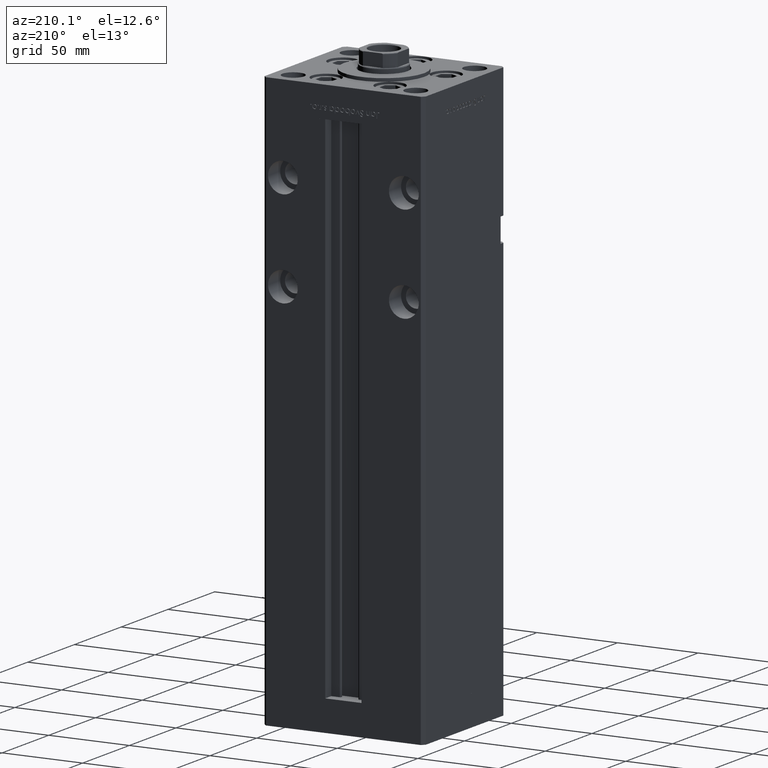
[diagram: clean part render]
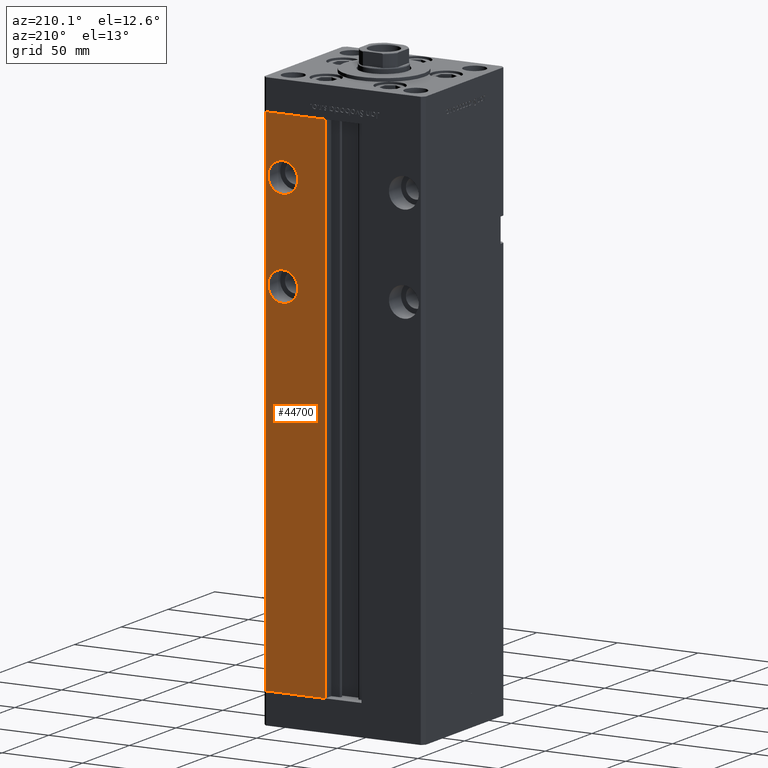
[diagram: same view with one face highlighted and labeled with its STEP entity id]
A machine part, auxiliary view. The second image highlights one B-rep face of the part: STEP entity #44700.
In plain terms, the highlighted planar face has unit normal (0, -1, 0).
Its self-contained STEP definition (entity closure, byte-faithful):
#66 = CIRCLE ( 'NONE', #7765, 9.250000000000008882 ) ;
#254 = LINE ( 'NONE', #37081, #46926 ) ;
#1418 = EDGE_LOOP ( 'NONE', ( #36044, #39687 ) ) ;
#2415 = DIRECTION ( 'NONE',  ( -0.000000000000000000, -0.000000000000000000, -1.000000000000000000 ) ) ;
#3420 = CIRCLE ( 'NONE', #29162, 9.249999999999980460 ) ;
#3513 = DIRECTION ( 'NONE',  ( 0.000000000000000000, 0.000000000000000000, 1.000000000000000000 ) ) ;
#3908 = CARTESIAN_POINT ( 'NONE',  ( 37.50000000000000000, 43.50000000000000000, 223.5000000000000000 ) ) ;
#4065 = CARTESIAN_POINT ( 'NONE',  ( 37.50000000000000000, 43.50000000000000000, 274.2500000000000000 ) ) ;
#4335 = DIRECTION ( 'NONE',  ( 0.000000000000000000, 1.000000000000000000, -0.000000000000000000 ) ) ;
#6293 = EDGE_LOOP ( 'NONE', ( #29434, #12385 ) ) ;
#7005 = EDGE_CURVE ( 'NONE', #19981, #49477, #66, .T. ) ;
#7765 = AXIS2_PLACEMENT_3D ( 'NONE', #25027, #4335, #16945 ) ;
#8208 = ORIENTED_EDGE ( 'NONE', *, *, #37226, .T. ) ;
#8699 = VERTEX_POINT ( 'NONE', #41056 ) ;
#9876 = DIRECTION ( 'NONE',  ( 0.000000000000000000, -1.000000000000000000, 0.000000000000000000 ) ) ;
#10005 = CIRCLE ( 'NONE', #46929, 9.249999999999980460 ) ;
#10139 = CARTESIAN_POINT ( 'NONE',  ( -11.24999999999999645, 43.50000000000000000, 318.5000000000000000 ) ) ;
#10404 = EDGE_CURVE ( 'NONE', #49477, #19981, #26647, .T. ) ;
#12385 = ORIENTED_EDGE ( 'NONE', *, *, #7005, .F. ) ;
#12883 = AXIS2_PLACEMENT_3D ( 'NONE', #3908, #23557, #20291 ) ;
#13282 = LINE ( 'NONE', #50128, #31973 ) ;
#13552 = EDGE_LOOP ( 'NONE', ( #36494, #53110, #42342, #8208 ) ) ;
#14094 = DIRECTION ( 'NONE',  ( 1.000000000000000000, 0.000000000000000000, 0.000000000000000000 ) ) ;
#14172 = PLANE ( 'NONE',  #46384 ) ;
#15258 = VECTOR ( 'NONE', #2415, 1000.000000000000000 ) ;
#16218 = DIRECTION ( 'NONE',  ( 0.000000000000000000, 0.000000000000000000, 1.000000000000000000 ) ) ;
#16945 = DIRECTION ( 'NONE',  ( 0.000000000000000000, 0.000000000000000000, -1.000000000000000000 ) ) ;
#17823 = LINE ( 'NONE', #25627, #30778 ) ;
#18844 = CARTESIAN_POINT ( 'NONE',  ( 11.24999999999998934, 43.50000000000000000, 318.5000000000000000 ) ) ;
#19479 = CARTESIAN_POINT ( 'NONE',  ( 37.50000000000000000, 43.50000000000000000, 283.5000000000000000 ) ) ;
#19981 = VERTEX_POINT ( 'NONE', #20623 ) ;
#20291 = DIRECTION ( 'NONE',  ( 0.000000000000000000, 0.000000000000000000, -1.000000000000000000 ) ) ;
#20623 = CARTESIAN_POINT ( 'NONE',  ( 37.50000000000000000, 43.50000000000000000, 214.2500000000000000 ) ) ;
#20969 = CARTESIAN_POINT ( 'NONE',  ( 37.50000000000000000, 43.50000000000000000, 292.7499999999999432 ) ) ;
#22561 = LINE ( 'NONE', #31429, #15258 ) ;
#23557 = DIRECTION ( 'NONE',  ( 0.000000000000000000, 1.000000000000000000, -0.000000000000000000 ) ) ;
#24665 = EDGE_CURVE ( 'NONE', #30077, #35369, #254, .T. ) ;
#25027 = CARTESIAN_POINT ( 'NONE',  ( 37.50000000000000000, 43.50000000000000000, 223.5000000000000000 ) ) ;
#25627 = CARTESIAN_POINT ( 'NONE',  ( -11.24999999999999645, 43.50000000000000000, 0.000000000000000000 ) ) ;
#26647 = CIRCLE ( 'NONE', #12883, 9.250000000000008882 ) ;
#27962 = DIRECTION ( 'NONE',  ( -0.000000000000000000, -0.000000000000000000, 1.000000000000000000 ) ) ;
#29162 = AXIS2_PLACEMENT_3D ( 'NONE', #52437, #32014, #3513 ) ;
#29434 = ORIENTED_EDGE ( 'NONE', *, *, #10404, .F. ) ;
#29825 = VERTEX_POINT ( 'NONE', #4065 ) ;
#30077 = VERTEX_POINT ( 'NONE', #36478 ) ;
#30317 = EDGE_CURVE ( 'NONE', #29825, #52856, #10005, .T. ) ;
#30591 = FACE_BOUND ( 'NONE', #6293, .T. ) ;
#30778 = VECTOR ( 'NONE', #50349, 1000.000000000000000 ) ;
#31429 = CARTESIAN_POINT ( 'NONE',  ( 48.00000000000000711, 43.50000000000000000, 318.5000000000000000 ) ) ;
#31973 = VECTOR ( 'NONE', #14094, 1000.000000000000000 ) ;
#32014 = DIRECTION ( 'NONE',  ( 0.000000000000000000, 1.000000000000000000, 0.000000000000000000 ) ) ;
#33734 = CARTESIAN_POINT ( 'NONE',  ( 37.50000000000000000, 43.50000000000000000, 232.7500000000000000 ) ) ;
#34346 = DIRECTION ( 'NONE',  ( 0.000000000000000000, -0.000000000000000000, -1.000000000000000000 ) ) ;
#35369 = VERTEX_POINT ( 'NONE', #18844 ) ;
#36044 = ORIENTED_EDGE ( 'NONE', *, *, #42804, .F. ) ;
#36478 = CARTESIAN_POINT ( 'NONE',  ( 11.24999999999999645, 43.50000000000000000, 0.000000000000000000 ) ) ;
#36494 = ORIENTED_EDGE ( 'NONE', *, *, #38874, .T. ) ;
#37081 = CARTESIAN_POINT ( 'NONE',  ( 11.24999999999999645, 43.50000000000000000, 0.000000000000000000 ) ) ;
#37226 = EDGE_CURVE ( 'NONE', #8699, #48404, #22561, .T. ) ;
#37849 = FACE_BOUND ( 'NONE', #1418, .T. ) ;
#38874 = EDGE_CURVE ( 'NONE', #48404, #30077, #17823, .T. ) ;
#39687 = ORIENTED_EDGE ( 'NONE', *, *, #30317, .F. ) ;
#41056 = CARTESIAN_POINT ( 'NONE',  ( 48.00000000000000711, 43.50000000000000000, 318.5000000000000000 ) ) ;
#42342 = ORIENTED_EDGE ( 'NONE', *, *, #49470, .T. ) ;
#42804 = EDGE_CURVE ( 'NONE', #52856, #29825, #3420, .T. ) ;
#44222 = DIRECTION ( 'NONE',  ( 0.000000000000000000, 1.000000000000000000, 0.000000000000000000 ) ) ;
#44700 = ADVANCED_FACE ( 'NONE', ( #30591, #37849, #46455 ), #14172, .F. ) ;
#46384 = AXIS2_PLACEMENT_3D ( 'NONE', #10139, #9876, #34346 ) ;
#46455 = FACE_OUTER_BOUND ( 'NONE', #13552, .T. ) ;
#46926 = VECTOR ( 'NONE', #27962, 1000.000000000000000 ) ;
#46929 = AXIS2_PLACEMENT_3D ( 'NONE', #19479, #44222, #16218 ) ;
#48404 = VERTEX_POINT ( 'NONE', #49924 ) ;
#49470 = EDGE_CURVE ( 'NONE', #35369, #8699, #13282, .T. ) ;
#49477 = VERTEX_POINT ( 'NONE', #33734 ) ;
#49924 = CARTESIAN_POINT ( 'NONE',  ( 48.00000000000000711, 43.50000000000000000, 0.000000000000000000 ) ) ;
#50128 = CARTESIAN_POINT ( 'NONE',  ( -11.24999999999999645, 43.50000000000000000, 318.5000000000000000 ) ) ;
#50349 = DIRECTION ( 'NONE',  ( -1.000000000000000000, 0.000000000000000000, 0.000000000000000000 ) ) ;
#52437 = CARTESIAN_POINT ( 'NONE',  ( 37.50000000000000000, 43.50000000000000000, 283.5000000000000000 ) ) ;
#52856 = VERTEX_POINT ( 'NONE', #20969 ) ;
#53110 = ORIENTED_EDGE ( 'NONE', *, *, #24665, .T. ) ;